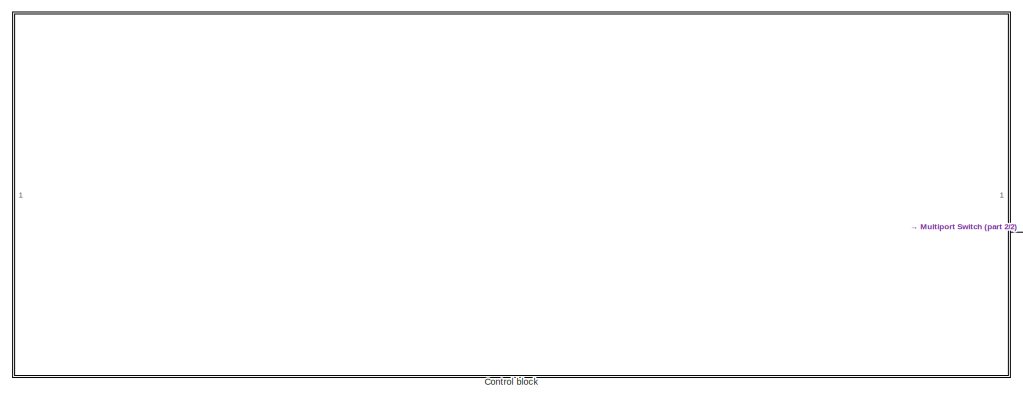
[diagram: root canvas - part 1/2, left side, full height]
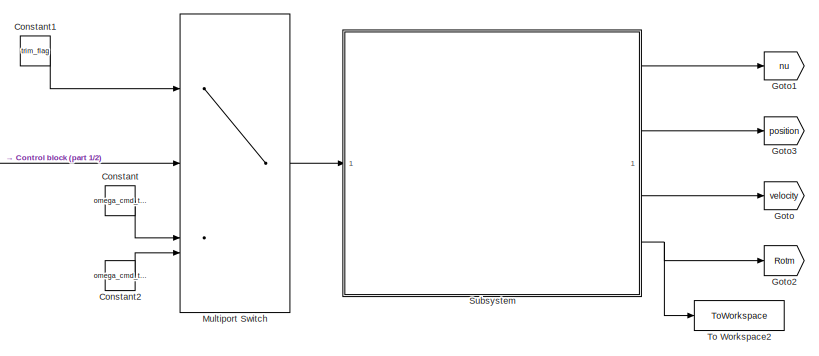
[diagram: root canvas - part 2/2, right side, full height]
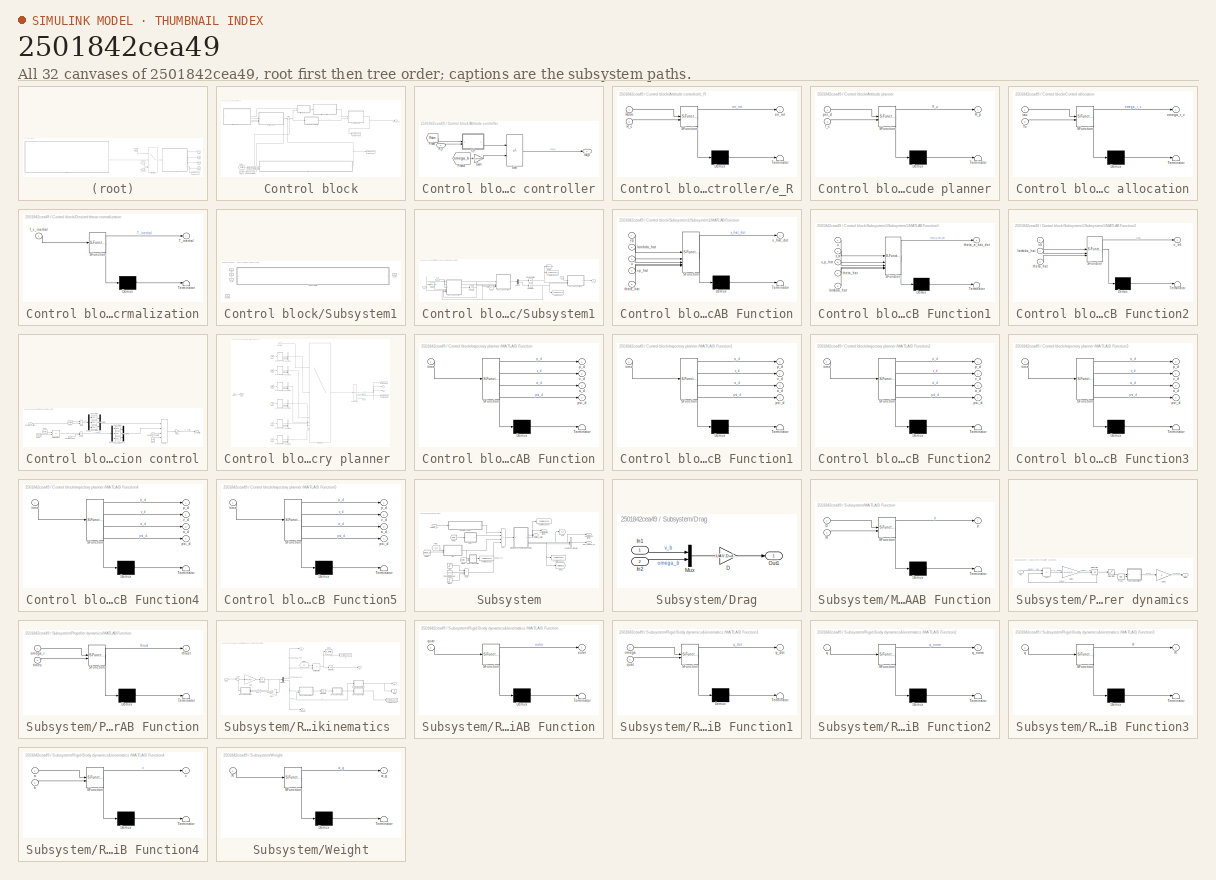
[diagram: thumbnail index - all 32 canvases of the model, root first then tree order]
MODEL slx_2501842cea49
KIND model
CONFIG AbsTol = auto
CONFIG EnableMultiTasking = off
CONFIG FixedStep = auto
CONFIG MaxStep = auto
CONFIG MinStep = auto
CONFIG RelTol = 1e-3
CONFIG SampleTimeConstraint = Unconstrained
CONFIG SolverName = VariableStepAuto
CONFIG StartTime = 0.0
CONFIG StopTime = simulation_time
BLOCK [Constant] Constant
  Value = omega_cmd_trim_1
BLOCK [Constant] Constant1
  Value = trim_flag
BLOCK [Constant] Constant2
  Value = omega_cmd_trim_2
BLOCK [SubSystem] Control block
BLOCK [SubSystem] Control block/Attitude controller
BLOCK [From] Control block/Attitude controller/From
  GotoTag = Rotm
  TagVisibility = global
BLOCK [From] Control block/Attitude controller/From3
  GotoTag = omega_b
  TagVisibility = global
BLOCK [Gain] Control block/Attitude controller/Gain
  Gain = k_omega
  Multiplication = Matrix(K*u)
BLOCK [Inport] Control block/Attitude controller/R_c
BLOCK [Sum] Control block/Attitude controller/Sum
  IconShape = rectangular
  Inputs = --
BLOCK [SubSystem] Control block/Attitude controller/e_R
  ErrorFcn = Stateflow.Translate.translate
  PermitHierarchicalResolution = ExplicitOnly
  SFBlockType = MATLAB Function
  TreatAsAtomicUnit = on
BLOCK [Demux] Control block/Attitude controller/e_R/ Demux 
  Outputs = 1
BLOCK [S-Function] Control block/Attitude controller/e_R/ SFunction 
  EnableBusSupport = on
  FunctionName = sf_sfun
  Parameters = k_R
  PortCounts = [2 2]
  SFcnIsStateOwnerBlock = off
  SFunctionDeploymentMode = off
  Tag = Stateflow S-Function 12
BLOCK [Terminator] Control block/Attitude controller/e_R/ Terminator 
BLOCK [Inport] Control block/Attitude controller/e_R/R_c
  Port = 2
BLOCK [Inport] Control block/Attitude controller/e_R/Rotm
BLOCK [Outport] Control block/Attitude controller/e_R/err_rot
BLOCK [Outport] Control block/Attitude controller/tau_b
BLOCK [SubSystem] Control block/Attitude planner
  ErrorFcn = Stateflow.Translate.translate
  PermitHierarchicalResolution = ExplicitOnly
  SFBlockType = MATLAB Function
  TreatAsAtomicUnit = on
BLOCK [Demux] Control block/Attitude planner/ Demux 
  Outputs = 1
BLOCK [S-Function] Control block/Attitude planner/ SFunction 
  EnableBusSupport = on
  FunctionName = sf_sfun
  PortCounts = [2 2]
  SFcnIsStateOwnerBlock = off
  SFunctionDeploymentMode = off
  Tag = Stateflow S-Function 11
BLOCK [Terminator] Control block/Attitude planner/ Terminator 
BLOCK [Outport] Control block/Attitude planner/R_p
BLOCK [Inport] Control block/Attitude planner/f_c
  Port = 2
BLOCK [Inport] Control block/Attitude planner/psi_d
BLOCK [SubSystem] Control block/Control allocation
  ErrorFcn = Stateflow.Translate.translate
  PermitHierarchicalResolution = ExplicitOnly
  SFBlockType = MATLAB Function
  TreatAsAtomicUnit = on
BLOCK [Demux] Control block/Control allocation/ Demux 
  Outputs = 1
BLOCK [S-Function] Control block/Control allocation/ SFunction 
  EnableBusSupport = on
  FunctionName = sf_sfun
  Parameters = F,UAV,k_f,lambda_r_0
  PortCounts = [2 2]
  SFcnIsStateOwnerBlock = off
  SFunctionDeploymentMode = off
  Tag = Stateflow S-Function 13
BLOCK [Terminator] Control block/Control allocation/ Terminator 
BLOCK [Inport] Control block/Control allocation/Tc
  Port = 2
BLOCK [Outport] Control block/Control allocation/omega_r_v
BLOCK [Inport] Control block/Control allocation/tau
BLOCK [SubSystem] Control block/Desired thrust normalization
  ErrorFcn = Stateflow.Translate.translate
  PermitHierarchicalResolution = ExplicitOnly
  SFBlockType = MATLAB Function
  TreatAsAtomicUnit = on
BLOCK [Demux] Control block/Desired thrust normalization/ Demux 
  Outputs = 1
BLOCK [S-Function] Control block/Desired thrust normalization/ SFunction 
  EnableBusSupport = on
  FunctionName = sf_sfun
  PortCounts = [1 2]
  SFcnIsStateOwnerBlock = off
  SFunctionDeploymentMode = off
  Tag = Stateflow S-Function 10
BLOCK [Terminator] Control block/Desired thrust normalization/ Terminator 
BLOCK [Outport] Control block/Desired thrust normalization/T_inertial
BLOCK [Inport] Control block/Desired thrust normalization/f_c_inertial
BLOCK [From] Control block/From2
  GotoTag = v_inertial
  TagVisibility = global
BLOCK [From] Control block/From3
  GotoTag = velocity
  TagVisibility = global
BLOCK [SignalSpecification] Control block/Signal Specification
  Dimensions = 3
BLOCK [SignalSpecification] Control block/Signal Specification1
  Dimensions = 3
BLOCK [SubSystem] Control block/Subsystem1
  AllowZeroVariantControls = on
  Variant = on
BLOCK [SubSystem] Control block/Subsystem1/Subsystem1
  VariantControl = flag_adaptive==1
BLOCK [Demux] Control block/Subsystem1/Subsystem1/Demux
  Outputs = 2
BLOCK [From] Control block/Subsystem1/Subsystem1/From
  GotoTag = lambda_hat
BLOCK [From] Control block/Subsystem1/Subsystem1/From4
  GotoTag = lambda_hat
BLOCK [Goto] Control block/Subsystem1/Subsystem1/Goto4
  GotoTag = lambda_hat
BLOCK [Integrator] Control block/Subsystem1/Subsystem1/Integrator
  InitialCondition = [0,0,0]'
BLOCK [Integrator] Control block/Subsystem1/Subsystem1/Integrator Limited
  InitialCondition = 1/UAV.m*[1 1 1]'
  LimitOutput = on
  LowerSaturationLimit = [0 0 0]'
  UpperSaturationLimit = 1/UAV.m*[1 1 1]'
BLOCK [Integrator] Control block/Subsystem1/Subsystem1/Integrator1
  InitialCondition = [0 0 0]'
BLOCK [SubSystem] Control block/Subsystem1/Subsystem1/MATLAB Function
  ErrorFcn = Stateflow.Translate.translate
  PermitHierarchicalResolution = ExplicitOnly
  SFBlockType = MATLAB Function
  TreatAsAtomicUnit = on
BLOCK [Demux] Control block/Subsystem1/Subsystem1/MATLAB Function/ Demux 
  Outputs = 1
BLOCK [S-Function] Control block/Subsystem1/Subsystem1/MATLAB Function/ SFunction 
  EnableBusSupport = on
  FunctionName = sf_sfun
  Parameters = Ap,Bp,L,e,g
  PortCounts = [5 2]
  SFcnIsStateOwnerBlock = off
  SFunctionDeploymentMode = off
  Tag = Stateflow S-Function 14
BLOCK [Terminator] Control block/Subsystem1/Subsystem1/MATLAB Function/ Terminator 
BLOCK [Inport] Control block/Subsystem1/Subsystem1/MATLAB Function/lambda_hat
  Port = 2
BLOCK [Inport] Control block/Subsystem1/Subsystem1/MATLAB Function/theta_hat
  Port = 5
BLOCK [Inport] Control block/Subsystem1/Subsystem1/MATLAB Function/u
  Port = 3
BLOCK [Outport] Control block/Subsystem1/Subsystem1/MATLAB Function/x_hat_dot
BLOCK [Inport] Control block/Subsystem1/Subsystem1/MATLAB Function/xp
BLOCK [Inport] Control block/Subsystem1/Subsystem1/MATLAB Function/xp_hat
  Port = 4
BLOCK [SubSystem] Control block/Subsystem1/Subsystem1/MATLAB Function1
  ErrorFcn = Stateflow.Translate.translate
  PermitHierarchicalResolution = ExplicitOnly
  SFBlockType = MATLAB Function
  TreatAsAtomicUnit = on
BLOCK [Demux] Control block/Subsystem1/Subsystem1/MATLAB Function1/ Demux 
  Outputs = 1
BLOCK [S-Function] Control block/Subsystem1/Subsystem1/MATLAB Function1/ SFunction 
  EnableBusSupport = on
  FunctionName = sf_sfun
  Parameters = Bp,Gamma_a
  PortCounts = [5 2]
  SFcnIsStateOwnerBlock = off
  SFunctionDeploymentMode = off
  Tag = Stateflow S-Function 15
BLOCK [Terminator] Control block/Subsystem1/Subsystem1/MATLAB Function1/ Terminator 
BLOCK [Inport] Control block/Subsystem1/Subsystem1/MATLAB Function1/lambda_hat
  Port = 5
BLOCK [Outport] Control block/Subsystem1/Subsystem1/MATLAB Function1/theta_a_hat_dot
BLOCK [Inport] Control block/Subsystem1/Subsystem1/MATLAB Function1/theta_hat
  Port = 4
BLOCK [Inport] Control block/Subsystem1/Subsystem1/MATLAB Function1/u
BLOCK [Inport] Control block/Subsystem1/Subsystem1/MATLAB Function1/x_p
  Port = 2
BLOCK [Inport] Control block/Subsystem1/Subsystem1/MATLAB Function1/x_p_hat
  Port = 3
BLOCK [SubSystem] Control block/Subsystem1/Subsystem1/MATLAB Function2
  ErrorFcn = Stateflow.Translate.translate
  PermitHierarchicalResolution = ExplicitOnly
  SFBlockType = MATLAB Function
  TreatAsAtomicUnit = on
BLOCK [Demux] Control block/Subsystem1/Subsystem1/MATLAB Function2/ Demux 
  Outputs = 1
BLOCK [S-Function] Control block/Subsystem1/Subsystem1/MATLAB Function2/ SFunction 
  EnableBusSupport = on
  FunctionName = sf_sfun
  PortCounts = [3 2]
  SFcnIsStateOwnerBlock = off
  SFunctionDeploymentMode = off
  Tag = Stateflow S-Function 16
BLOCK [Terminator] Control block/Subsystem1/Subsystem1/MATLAB Function2/ Terminator 
BLOCK [Inport] Control block/Subsystem1/Subsystem1/MATLAB Function2/lambda_hat
  Port = 2
BLOCK [Inport] Control block/Subsystem1/Subsystem1/MATLAB Function2/theta_hat
  Port = 3
BLOCK [Outport] Control block/Subsystem1/Subsystem1/MATLAB Function2/u_ad
BLOCK [Inport] Control block/Subsystem1/Subsystem1/MATLAB Function2/ub
BLOCK [ToWorkspace] Control block/Subsystem1/Subsystem1/To Workspace
  FixptAsFi = on
  MaxDataPoints = inf
  SampleTime = -1
  SaveFormat = Timeseries
  VariableName = theta_estimated
BLOCK [ToWorkspace] Control block/Subsystem1/Subsystem1/To Workspace1
  FixptAsFi = on
  MaxDataPoints = inf
  SampleTime = -1
  SaveFormat = Timeseries
  VariableName = lambda_estimated
BLOCK [Inport] Control block/Subsystem1/Subsystem1/u
  Port = 2
BLOCK [Outport] Control block/Subsystem1/Subsystem1/u_ad
BLOCK [Inport] Control block/Subsystem1/Subsystem1/ub
BLOCK [Inport] Control block/Subsystem1/Subsystem1/x_p
  Port = 3
BLOCK [Inport] Control block/Subsystem1/u
  Port = 2
BLOCK [Outport] Control block/Subsystem1/u_ad
BLOCK [Inport] Control block/Subsystem1/ub
BLOCK [Inport] Control block/Subsystem1/v_body
  Port = 4
BLOCK [Inport] Control block/Subsystem1/x_p
  Port = 3
BLOCK [Sum] Control block/Sum
  Inputs = |++
BLOCK [ToWorkspace] Control block/To Workspace
  FixptAsFi = on
  MaxDataPoints = inf
  SampleTime = -1
  SaveFormat = Timeseries
  VariableName = u_adapt
BLOCK [ToWorkspace] Control block/To Workspace1
  FixptAsFi = on
  MaxDataPoints = inf
  SampleTime = -1
  SaveFormat = Timeseries
  VariableName = omega_cmd
BLOCK [Outport] Control block/omega_r_v
BLOCK [SubSystem] Control block/position control
BLOCK [Demux] Control block/position control/Demux
  Outputs = 3
BLOCK [Demux] Control block/position control/Demux1
  Outputs = 3
BLOCK [Inport] Control block/position control/Desired acceleration
  Port = 3
BLOCK [Inport] Control block/position control/Desired position
BLOCK [Inport] Control block/position control/Desired velocity
  Port = 2
BLOCK [From] Control block/position control/From1
  GotoTag = velocity
  TagVisibility = global
BLOCK [From] Control block/position control/From4
  GotoTag = position
  TagVisibility = global
BLOCK [From] Control block/position control/From5
  GotoTag = Rotm
  TagVisibility = global
BLOCK [Gain] Control block/position control/Gain1
  Gain = UAV.m
BLOCK [Constant] Control block/position control/Gravity
  Value = [0 0 1]'*g
BLOCK [Product] Control block/position control/Matrix Multiply1
  Multiplication = Matrix(*)
BLOCK [Mux] Control block/position control/Mux
  DisplayOption = bar
  Inputs = 3
BLOCK [Mux] Control block/position control/Mux1
  DisplayOption = bar
  Inputs = 3
BLOCK [Reference] Control block/position control/PID Controller  REF=slpidlib/PID Controller
  SourceBlock = slpidlib/PID Controller
  SourceType = PID 1dof
BLOCK [Reference] Control block/position control/PID Controller1  REF=slpidlib/PID Controller
  SourceBlock = slpidlib/PID Controller
  SourceType = PID 1dof
BLOCK [Reference] Control block/position control/PID Controller2  REF=slpidlib/PID Controller
  SourceBlock = slpidlib/PID Controller
  SourceType = PID 1dof
BLOCK [Reference] Control block/position control/PID Controller3  REF=slpidlib/PID Controller
  SourceBlock = slpidlib/PID Controller
  SourceType = PID 1dof
BLOCK [Reference] Control block/position control/PID Controller4  REF=slpidlib/PID Controller
  SourceBlock = slpidlib/PID Controller
  SourceType = PID 1dof
BLOCK [Reference] Control block/position control/PID Controller5  REF=slpidlib/PID Controller
  SourceBlock = slpidlib/PID Controller
  SourceType = PID 1dof
BLOCK [Sum] Control block/position control/Sum
  IconShape = rectangular
  Inputs = |-+
BLOCK [Sum] Control block/position control/Sum1
  IconShape = rectangular
  Inputs = |-+
BLOCK [Sum] Control block/position control/Sum2
  IconShape = rectangular
  Inputs = ++++
BLOCK [Outport] Control block/position control/f_c_inertial
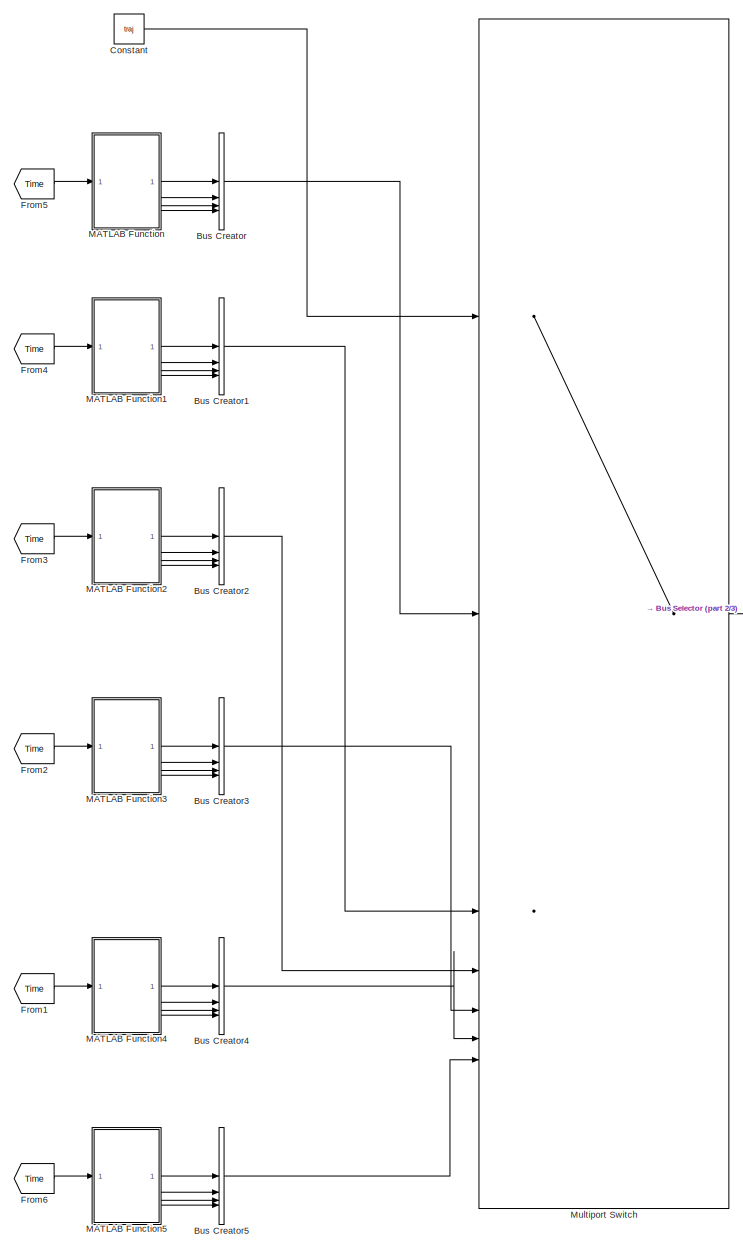
[diagram: Control block/trajectory planner  - part 1/3, center side, full height]
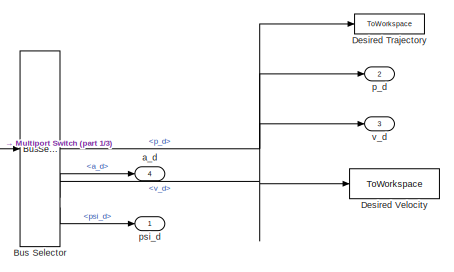
[diagram: Control block/trajectory planner  - part 2/3, middle right region]
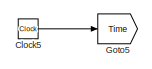
[diagram: Control block/trajectory planner  - part 3/3, middle left region]
BLOCK [SubSystem] Control block/trajectory planner 
BLOCK [BusCreator] Control block/trajectory planner /Bus Creator
  DisplayOption = bar
  InheritFromInputs = on
  Inputs = 4
BLOCK [BusCreator] Control block/trajectory planner /Bus Creator1
  DisplayOption = bar
  InheritFromInputs = on
  Inputs = 4
BLOCK [BusCreator] Control block/trajectory planner /Bus Creator2
  DisplayOption = bar
  InheritFromInputs = on
  Inputs = 4
BLOCK [BusCreator] Control block/trajectory planner /Bus Creator3
  DisplayOption = bar
  InheritFromInputs = on
  Inputs = 4
BLOCK [BusCreator] Control block/trajectory planner /Bus Creator4
  DisplayOption = bar
  InheritFromInputs = on
  Inputs = 4
BLOCK [BusCreator] Control block/trajectory planner /Bus Creator5
  DisplayOption = bar
  InheritFromInputs = on
  Inputs = 4
BLOCK [BusSelector] Control block/trajectory planner /Bus Selector
  OutputSignals = p_d,v_d,a_d,psi_d
BLOCK [Clock] Control block/trajectory planner /Clock5
BLOCK [Constant] Control block/trajectory planner /Constant
  Value = traj
BLOCK [ToWorkspace] Control block/trajectory planner /Desired Trajectory
  FixptAsFi = on
  MaxDataPoints = inf
  SampleTime = -1
  SaveFormat = Timeseries
  VariableName = trajectory
BLOCK [ToWorkspace] Control block/trajectory planner /Desired Velocity
  FixptAsFi = on
  MaxDataPoints = inf
  SampleTime = -1
  SaveFormat = Timeseries
  VariableName = velocity_trajectory
BLOCK [From] Control block/trajectory planner /From1
  GotoTag = Time
  TagVisibility = global
BLOCK [From] Control block/trajectory planner /From2
  GotoTag = Time
  TagVisibility = global
BLOCK [From] Control block/trajectory planner /From3
  GotoTag = Time
  TagVisibility = global
BLOCK [From] Control block/trajectory planner /From4
  GotoTag = Time
  TagVisibility = global
BLOCK [From] Control block/trajectory planner /From5
  GotoTag = Time
  TagVisibility = global
BLOCK [From] Control block/trajectory planner /From6
  GotoTag = Time
  TagVisibility = global
BLOCK [Goto] Control block/trajectory planner /Goto5
  GotoTag = Time
  TagVisibility = global
BLOCK [SubSystem] Control block/trajectory planner /MATLAB Function
  ErrorFcn = Stateflow.Translate.translate
  PermitHierarchicalResolution = ExplicitOnly
  SFBlockType = MATLAB Function
  TreatAsAtomicUnit = on
BLOCK [Demux] Control block/trajectory planner /MATLAB Function/ Demux 
  Outputs = 1
BLOCK [S-Function] Control block/trajectory planner /MATLAB Function/ SFunction 
  EnableBusSupport = on
  FunctionName = sf_sfun
  Parameters = omega_t,radius,w_t
  PortCounts = [1 5]
  SFcnIsStateOwnerBlock = off
  SFunctionDeploymentMode = off
  Tag = Stateflow S-Function 8
BLOCK [Terminator] Control block/trajectory planner /MATLAB Function/ Terminator 
BLOCK [Outport] Control block/trajectory planner /MATLAB Function/a_d
  Port = 3
BLOCK [Outport] Control block/trajectory planner /MATLAB Function/p_d
BLOCK [Outport] Control block/trajectory planner /MATLAB Function/psi_d
  Port = 4
BLOCK [Inport] Control block/trajectory planner /MATLAB Function/time
BLOCK [Outport] Control block/trajectory planner /MATLAB Function/v_d
  Port = 2
BLOCK [SubSystem] Control block/trajectory planner /MATLAB Function1
  ErrorFcn = Stateflow.Translate.translate
  PermitHierarchicalResolution = ExplicitOnly
  SFBlockType = MATLAB Function
  TreatAsAtomicUnit = on
BLOCK [Demux] Control block/trajectory planner /MATLAB Function1/ Demux 
  Outputs = 1
BLOCK [S-Function] Control block/trajectory planner /MATLAB Function1/ SFunction 
  EnableBusSupport = on
  FunctionName = sf_sfun
  Parameters = omega_t,radius,w_t
  PortCounts = [1 5]
  SFcnIsStateOwnerBlock = off
  SFunctionDeploymentMode = off
  Tag = Stateflow S-Function 18
BLOCK [Terminator] Control block/trajectory planner /MATLAB Function1/ Terminator 
BLOCK [Outport] Control block/trajectory planner /MATLAB Function1/a_d
  Port = 3
BLOCK [Outport] Control block/trajectory planner /MATLAB Function1/p_d
BLOCK [Outport] Control block/trajectory planner /MATLAB Function1/psi_d
  Port = 4
BLOCK [Inport] Control block/trajectory planner /MATLAB Function1/time
BLOCK [Outport] Control block/trajectory planner /MATLAB Function1/v_d
  Port = 2
BLOCK [SubSystem] Control block/trajectory planner /MATLAB Function2
  ErrorFcn = Stateflow.Translate.translate
  PermitHierarchicalResolution = ExplicitOnly
  SFBlockType = MATLAB Function
  TreatAsAtomicUnit = on
BLOCK [Demux] Control block/trajectory planner /MATLAB Function2/ Demux 
  Outputs = 1
BLOCK [S-Function] Control block/trajectory planner /MATLAB Function2/ SFunction 
  EnableBusSupport = on
  FunctionName = sf_sfun
  Parameters = omega_t,radius,w_t
  PortCounts = [1 5]
  SFcnIsStateOwnerBlock = off
  SFunctionDeploymentMode = off
  Tag = Stateflow S-Function 19
BLOCK [Terminator] Control block/trajectory planner /MATLAB Function2/ Terminator 
BLOCK [Outport] Control block/trajectory planner /MATLAB Function2/a_d
  Port = 3
BLOCK [Outport] Control block/trajectory planner /MATLAB Function2/p_d
BLOCK [Outport] Control block/trajectory planner /MATLAB Function2/psi_d
  Port = 4
BLOCK [Inport] Control block/trajectory planner /MATLAB Function2/time
BLOCK [Outport] Control block/trajectory planner /MATLAB Function2/v_d
  Port = 2
BLOCK [SubSystem] Control block/trajectory planner /MATLAB Function3
  ErrorFcn = Stateflow.Translate.translate
  PermitHierarchicalResolution = ExplicitOnly
  SFBlockType = MATLAB Function
  TreatAsAtomicUnit = on
BLOCK [Demux] Control block/trajectory planner /MATLAB Function3/ Demux 
  Outputs = 1
BLOCK [S-Function] Control block/trajectory planner /MATLAB Function3/ SFunction 
  EnableBusSupport = on
  FunctionName = sf_sfun
  Parameters = omega_t,radius,w_t
  PortCounts = [1 5]
  SFcnIsStateOwnerBlock = off
  SFunctionDeploymentMode = off
  Tag = Stateflow S-Function 20
BLOCK [Terminator] Control block/trajectory planner /MATLAB Function3/ Terminator 
BLOCK [Outport] Control block/trajectory planner /MATLAB Function3/a_d
  Port = 3
BLOCK [Outport] Control block/trajectory planner /MATLAB Function3/p_d
BLOCK [Outport] Control block/trajectory planner /MATLAB Function3/psi_d
  Port = 4
BLOCK [Inport] Control block/trajectory planner /MATLAB Function3/time
BLOCK [Outport] Control block/trajectory planner /MATLAB Function3/v_d
  Port = 2
BLOCK [SubSystem] Control block/trajectory planner /MATLAB Function4
  ErrorFcn = Stateflow.Translate.translate
  PermitHierarchicalResolution = ExplicitOnly
  SFBlockType = MATLAB Function
  TreatAsAtomicUnit = on
BLOCK [Demux] Control block/trajectory planner /MATLAB Function4/ Demux 
  Outputs = 1
BLOCK [S-Function] Control block/trajectory planner /MATLAB Function4/ SFunction 
  EnableBusSupport = on
  FunctionName = sf_sfun
  Parameters = omega_t,radius,w_t
  PortCounts = [1 5]
  SFcnIsStateOwnerBlock = off
  SFunctionDeploymentMode = off
  Tag = Stateflow S-Function 21
BLOCK [Terminator] Control block/trajectory planner /MATLAB Function4/ Terminator 
BLOCK [Outport] Control block/trajectory planner /MATLAB Function4/a_d
  Port = 3
BLOCK [Outport] Control block/trajectory planner /MATLAB Function4/p_d
BLOCK [Outport] Control block/trajectory planner /MATLAB Function4/psi_d
  Port = 4
BLOCK [Inport] Control block/trajectory planner /MATLAB Function4/time
BLOCK [Outport] Control block/trajectory planner /MATLAB Function4/v_d
  Port = 2
BLOCK [SubSystem] Control block/trajectory planner /MATLAB Function5
  ErrorFcn = Stateflow.Translate.translate
  PermitHierarchicalResolution = ExplicitOnly
  SFBlockType = MATLAB Function
  TreatAsAtomicUnit = on
BLOCK [Demux] Control block/trajectory planner /MATLAB Function5/ Demux 
  Outputs = 1
BLOCK [S-Function] Control block/trajectory planner /MATLAB Function5/ SFunction 
  EnableBusSupport = on
  FunctionName = sf_sfun
  PortCounts = [1 5]
  SFcnIsStateOwnerBlock = off
  SFunctionDeploymentMode = off
  Tag = Stateflow S-Function 22
BLOCK [Terminator] Control block/trajectory planner /MATLAB Function5/ Terminator 
BLOCK [Outport] Control block/trajectory planner /MATLAB Function5/a_d
  Port = 3
BLOCK [Outport] Control block/trajectory planner /MATLAB Function5/p_d
BLOCK [Outport] Control block/trajectory planner /MATLAB Function5/psi_d
  Port = 4
BLOCK [Inport] Control block/trajectory planner /MATLAB Function5/time
BLOCK [Outport] Control block/trajectory planner /MATLAB Function5/v_d
  Port = 2
BLOCK [MultiPortSwitch] Control block/trajectory planner /Multiport Switch
  DataPortOrder = Zero-based contiguous
  InputSameDT = off
  Inputs = 6
  SaturateOnIntegerOverflow = off
  zeroidx = on
BLOCK [Outport] Control block/trajectory planner /a_d
  Port = 4
BLOCK [Outport] Control block/trajectory planner /p_d
  Port = 2
BLOCK [Outport] Control block/trajectory planner /psi_d
BLOCK [Outport] Control block/trajectory planner /v_d
  Port = 3
BLOCK [Goto] Goto
  GotoTag = velocity
  TagVisibility = global
BLOCK [Goto] Goto1
  GotoTag = nu
  TagVisibility = global
BLOCK [Goto] Goto2
  GotoTag = Rotm
  TagVisibility = global
BLOCK [Goto] Goto3
  GotoTag = position
  TagVisibility = global
BLOCK [MultiPortSwitch] Multiport Switch
  DataPortOrder = Zero-based contiguous
  InputSameDT = off
  SaturateOnIntegerOverflow = off
  zeroidx = on
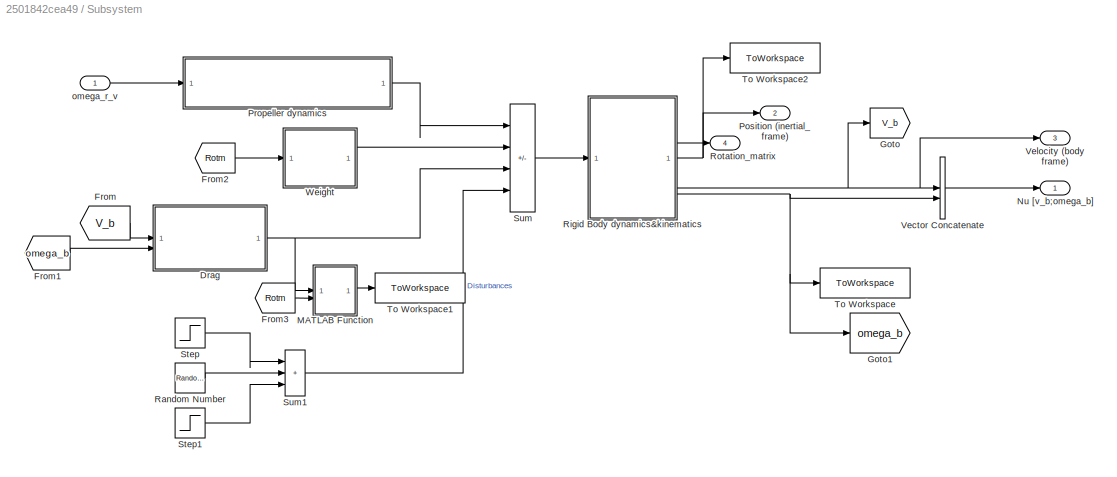
BLOCK [SubSystem] Subsystem
BLOCK [SubSystem] Subsystem/Drag
BLOCK [Gain] Subsystem/Drag/D
  Gain = UAV.D+diag(pert)
  Multiplication = Matrix(K*u)
BLOCK [Inport] Subsystem/Drag/In1
BLOCK [Inport] Subsystem/Drag/In2
  Port = 2
BLOCK [Mux] Subsystem/Drag/Mux
  DisplayOption = bar
  Inputs = 2
BLOCK [Outport] Subsystem/Drag/Out1
BLOCK [From] Subsystem/From
  GotoTag = V_b
BLOCK [From] Subsystem/From1
  GotoTag = omega_b
  TagVisibility = global
BLOCK [From] Subsystem/From2
  GotoTag = Rotm
  TagVisibility = global
BLOCK [From] Subsystem/From3
  GotoTag = Rotm
  TagVisibility = global
BLOCK [Goto] Subsystem/Goto
  GotoTag = V_b
BLOCK [Goto] Subsystem/Goto1
  GotoTag = omega_b
  TagVisibility = global
BLOCK [SubSystem] Subsystem/MATLAB Function
  ErrorFcn = Stateflow.Translate.translate
  PermitHierarchicalResolution = ExplicitOnly
  SFBlockType = MATLAB Function
  TreatAsAtomicUnit = on
BLOCK [Demux] Subsystem/MATLAB Function/ Demux 
  Outputs = 1
BLOCK [S-Function] Subsystem/MATLAB Function/ SFunction 
  EnableBusSupport = on
  FunctionName = sf_sfun
  PortCounts = [2 2]
  SFcnIsStateOwnerBlock = off
  SFunctionDeploymentMode = off
  Tag = Stateflow S-Function 9
BLOCK [Terminator] Subsystem/MATLAB Function/ Terminator 
BLOCK [Inport] Subsystem/MATLAB Function/D
BLOCK [Inport] Subsystem/MATLAB Function/R
  Port = 2
BLOCK [Outport] Subsystem/MATLAB Function/y
BLOCK [Outport] Subsystem/Nu [v_b;omega_b]
BLOCK [Outport] Subsystem/Position (inertial_frame)
  Port = 2
BLOCK [SubSystem] Subsystem/Propeller dynamics
BLOCK [From] Subsystem/Propeller dynamics/From
  GotoTag = Time
  TagVisibility = global
BLOCK [Gain] Subsystem/Propeller dynamics/Gain1
  Gain = UAV.k_m_vec
BLOCK [Gain] Subsystem/Propeller dynamics/Gain2
  Gain = F
  Multiplication = Matrix(K*u)
BLOCK [Inport] Subsystem/Propeller dynamics/In1
BLOCK [Integrator] Subsystem/Propeller dynamics/Integrator
  InitialCondition = omega_r_0
BLOCK [SubSystem] Subsystem/Propeller dynamics/MATLAB Function
  ErrorFcn = Stateflow.Translate.translate
  PermitHierarchicalResolution = ExplicitOnly
  SFBlockType = MATLAB Function
  TreatAsAtomicUnit = on
BLOCK [Demux] Subsystem/Propeller dynamics/MATLAB Function/ Demux 
  Outputs = 1
BLOCK [S-Function] Subsystem/Propeller dynamics/MATLAB Function/ SFunction 
  EnableBusSupport = on
  FunctionName = sf_sfun
  Parameters = degrad_flag,k_f,lambda_r_0
  PortCounts = [2 2]
  SFcnIsStateOwnerBlock = off
  SFunctionDeploymentMode = off
  Tag = Stateflow S-Function 7
BLOCK [Terminator] Subsystem/Propeller dynamics/MATLAB Function/ Terminator 
BLOCK [Inport] Subsystem/Propeller dynamics/MATLAB Function/omega_r
BLOCK [Outport] Subsystem/Propeller dynamics/MATLAB Function/thrust
  VectorParamsAs1DForOutWhenUnconnected = off
BLOCK [Inport] Subsystem/Propeller dynamics/MATLAB Function/times
  Port = 2
BLOCK [Outport] Subsystem/Propeller dynamics/Out1
BLOCK [Saturate] Subsystem/Propeller dynamics/Saturation
  LowerLimit = UAV.Omega_min
  UpperLimit = UAV.Omega_max
BLOCK [Sum] Subsystem/Propeller dynamics/Sum1
  IconShape = rectangular
  Inputs = |+-
BLOCK [RandomNumber] Subsystem/Random Number
  Mean = [0 0 0 0 0 0]'
  SampleTime = 0.1
  Variance = f_ex/20*[1 1 1 0 0 0]'
BLOCK [SubSystem] Subsystem/Rigid Body dynamics&kinematics 
BLOCK [Demux] Subsystem/Rigid Body dynamics&kinematics /Demux
  Outputs = 2
BLOCK [From] Subsystem/Rigid Body dynamics&kinematics /From1
  GotoTag = R
BLOCK [Gain] Subsystem/Rigid Body dynamics&kinematics /Gain
  Gain = inv_M_tot
  Multiplication = Matrix(K*u)
BLOCK [Gain] Subsystem/Rigid Body dynamics&kinematics /Gain1
  Gain = M_tot
  Multiplication = Matrix(K*u)
  NameLocation = top
BLOCK [Goto] Subsystem/Rigid Body dynamics&kinematics /Goto
  GotoTag = R
BLOCK [Goto] Subsystem/Rigid Body dynamics&kinematics /Goto2
  GotoTag = v_inertial
  TagVisibility = global
BLOCK [Integrator] Subsystem/Rigid Body dynamics&kinematics /Integrator
  InitialCondition = p_0
BLOCK [Integrator] Subsystem/Rigid Body dynamics&kinematics /Integrator1
  InitialCondition = [vb_0; omegab_0]
BLOCK [Integrator] Subsystem/Rigid Body dynamics&kinematics /Integrator2
  InitialCondition = q_0
BLOCK [SubSystem] Subsystem/Rigid Body dynamics&kinematics /MATLAB Function
  ErrorFcn = Stateflow.Translate.translate
  PermitHierarchicalResolution = ExplicitOnly
  SFBlockType = MATLAB Function
  TreatAsAtomicUnit = on
BLOCK [Demux] Subsystem/Rigid Body dynamics&kinematics /MATLAB Function/ Demux 
  Outputs = 1
BLOCK [S-Function] Subsystem/Rigid Body dynamics&kinematics /MATLAB Function/ SFunction 
  EnableBusSupport = on
  FunctionName = sf_sfun
  PortCounts = [1 2]
  SFcnIsStateOwnerBlock = off
  SFunctionDeploymentMode = off
  Tag = Stateflow S-Function 2
BLOCK [Terminator] Subsystem/Rigid Body dynamics&kinematics /MATLAB Function/ Terminator 
BLOCK [Outport] Subsystem/Rigid Body dynamics&kinematics /MATLAB Function/euler
BLOCK [Inport] Subsystem/Rigid Body dynamics&kinematics /MATLAB Function/quat
BLOCK [SubSystem] Subsystem/Rigid Body dynamics&kinematics /MATLAB Function1
  ErrorFcn = Stateflow.Translate.translate
  PermitHierarchicalResolution = ExplicitOnly
  SFBlockType = MATLAB Function
  TreatAsAtomicUnit = on
BLOCK [Demux] Subsystem/Rigid Body dynamics&kinematics /MATLAB Function1/ Demux 
  Outputs = 1
BLOCK [S-Function] Subsystem/Rigid Body dynamics&kinematics /MATLAB Function1/ SFunction 
  EnableBusSupport = on
  FunctionName = sf_sfun
  PortCounts = [2 2]
  SFcnIsStateOwnerBlock = off
  SFunctionDeploymentMode = off
  Tag = Stateflow S-Function 1
BLOCK [Terminator] Subsystem/Rigid Body dynamics&kinematics /MATLAB Function1/ Terminator 
BLOCK [Inport] Subsystem/Rigid Body dynamics&kinematics /MATLAB Function1/omega
BLOCK [Outport] Subsystem/Rigid Body dynamics&kinematics /MATLAB Function1/q_dot
BLOCK [Inport] Subsystem/Rigid Body dynamics&kinematics /MATLAB Function1/quat
  Port = 2
BLOCK [SubSystem] Subsystem/Rigid Body dynamics&kinematics /MATLAB Function2
  ErrorFcn = Stateflow.Translate.translate
  PermitHierarchicalResolution = ExplicitOnly
  SFBlockType = MATLAB Function
  TreatAsAtomicUnit = on
BLOCK [Demux] Subsystem/Rigid Body dynamics&kinematics /MATLAB Function2/ Demux 
  Outputs = 1
BLOCK [S-Function] Subsystem/Rigid Body dynamics&kinematics /MATLAB Function2/ SFunction 
  EnableBusSupport = on
  FunctionName = sf_sfun
  PortCounts = [1 2]
  SFcnIsStateOwnerBlock = off
  SFunctionDeploymentMode = off
  Tag = Stateflow S-Function 3
BLOCK [Terminator] Subsystem/Rigid Body dynamics&kinematics /MATLAB Function2/ Terminator 
BLOCK [Inport] Subsystem/Rigid Body dynamics&kinematics /MATLAB Function2/q
BLOCK [Outport] Subsystem/Rigid Body dynamics&kinematics /MATLAB Function2/q_norm
BLOCK [SubSystem] Subsystem/Rigid Body dynamics&kinematics /MATLAB Function3
  ErrorFcn = Stateflow.Translate.translate
  PermitHierarchicalResolution = ExplicitOnly
  SFBlockType = MATLAB Function
  TreatAsAtomicUnit = on
BLOCK [Demux] Subsystem/Rigid Body dynamics&kinematics /MATLAB Function3/ Demux 
  Outputs = 1
BLOCK [S-Function] Subsystem/Rigid Body dynamics&kinematics /MATLAB Function3/ SFunction 
  EnableBusSupport = on
  FunctionName = sf_sfun
  PortCounts = [1 2]
  SFcnIsStateOwnerBlock = off
  SFunctionDeploymentMode = off
  Tag = Stateflow S-Function 4
BLOCK [Terminator] Subsystem/Rigid Body dynamics&kinematics /MATLAB Function3/ Terminator 
BLOCK [Outport] Subsystem/Rigid Body dynamics&kinematics /MATLAB Function3/R
BLOCK [Inport] Subsystem/Rigid Body dynamics&kinematics /MATLAB Function3/q
BLOCK [SubSystem] Subsystem/Rigid Body dynamics&kinematics /MATLAB Function4
  ErrorFcn = Stateflow.Translate.translate
  NameLocation = top
  PermitHierarchicalResolution = ExplicitOnly
  SFBlockType = MATLAB Function
  TreatAsAtomicUnit = on
BLOCK [Demux] Subsystem/Rigid Body dynamics&kinematics /MATLAB Function4/ Demux 
  Outputs = 1
BLOCK [S-Function] Subsystem/Rigid Body dynamics&kinematics /MATLAB Function4/ SFunction 
  EnableBusSupport = on
  FunctionName = sf_sfun
  PortCounts = [2 2]
  SFcnIsStateOwnerBlock = off
  SFunctionDeploymentMode = off
  Tag = Stateflow S-Function 5
BLOCK [Terminator] Subsystem/Rigid Body dynamics&kinematics /MATLAB Function4/ Terminator 
BLOCK [Inport] Subsystem/Rigid Body dynamics&kinematics /MATLAB Function4/a
BLOCK [Inport] Subsystem/Rigid Body dynamics&kinematics /MATLAB Function4/b
  Port = 2
BLOCK [Outport] Subsystem/Rigid Body dynamics&kinematics /MATLAB Function4/c
BLOCK [Product] Subsystem/Rigid Body dynamics&kinematics /Matrix Multiply
  Multiplication = Matrix(*)
BLOCK [Outport] Subsystem/Rigid Body dynamics&kinematics /R
  Port = 2
BLOCK [Sum] Subsystem/Rigid Body dynamics&kinematics /Sum
  Inputs = |+-
BLOCK [ToWorkspace] Subsystem/Rigid Body dynamics&kinematics /To Workspace
  FixptAsFi = on
  MaxDataPoints = inf
  SampleTime = -1
  SaveFormat = Timeseries
  VariableName = euler
BLOCK [ToWorkspace] Subsystem/Rigid Body dynamics&kinematics /a
  FixptAsFi = on
  MaxDataPoints = inf
  SampleTime = -1
  SaveFormat = Timeseries
  VariableName = V_body
BLOCK [Outport] Subsystem/Rigid Body dynamics&kinematics /omegab
  Port = 4
BLOCK [Outport] Subsystem/Rigid Body dynamics&kinematics /p
BLOCK [Outport] Subsystem/Rigid Body dynamics&kinematics /vb
  Port = 3
BLOCK [Inport] Subsystem/Rigid Body dynamics&kinematics /w_b
BLOCK [Outport] Subsystem/Rotation_matrix
  Port = 4
BLOCK [Step] Subsystem/Step
  After = f_ex*[1 1 1 0 0 0]';
  Before = 0*[1 1 1 0 0 0]';
  SampleTime = 0
  Time = t_pert
BLOCK [Step] Subsystem/Step1
  After = -f_ex*[1 1 1 0 0 0]';
  Before = 0*[1 1 1 0 0 0]';
  SampleTime = 0
  Time = t_pert+5
BLOCK [Sum] Subsystem/Sum
  IconShape = rectangular
  Inputs = |+--+
BLOCK [Sum] Subsystem/Sum1
  IconShape = rectangular
  Inputs = |+++
BLOCK [ToWorkspace] Subsystem/To Workspace
  FixptAsFi = on
  MaxDataPoints = inf
  SampleTime = -1
  SaveFormat = Timeseries
  VariableName = omega_body
BLOCK [ToWorkspace] Subsystem/To Workspace1
  FixptAsFi = on
  MaxDataPoints = inf
  SampleTime = -1
  SaveFormat = Timeseries
  VariableName = drag
BLOCK [ToWorkspace] Subsystem/To Workspace2
  FixptAsFi = on
  MaxDataPoints = inf
  SampleTime = -1
  SaveFormat = Timeseries
  VariableName = body_position
BLOCK [Concatenate] Subsystem/Vector Concatenate
BLOCK [Outport] Subsystem/Velocity (body frame)
  Port = 3
BLOCK [SubSystem] Subsystem/Weight
  ErrorFcn = Stateflow.Translate.translate
  LibrarySourceBlock = simulink/User-Defined\nFunctions/MATLAB Function
  PermitHierarchicalResolution = ExplicitOnly
  SFBlockType = MATLAB Function
  TreatAsAtomicUnit = on
BLOCK [Demux] Subsystem/Weight/ Demux 
  Outputs = 1
BLOCK [S-Function] Subsystem/Weight/ SFunction 
  EnableBusSupport = on
  FunctionName = sf_sfun
  Parameters = M_tot,e,g
  PortCounts = [1 2]
  SFcnIsStateOwnerBlock = off
  SFunctionDeploymentMode = off
  Tag = Stateflow S-Function 6
BLOCK [Terminator] Subsystem/Weight/ Terminator 
BLOCK [Inport] Subsystem/Weight/R
BLOCK [Outport] Subsystem/Weight/w_g
BLOCK [Inport] Subsystem/omega_r_v
BLOCK [ToWorkspace] To Workspace2
  FixptAsFi = on
  MaxDataPoints = inf
  SampleTime = -1
  SaveFormat = Timeseries
  VariableName = rot_m
ANNOTATION Subsystem/Rigid Body dynamics&kinematics : ATTITUDE KINEMATICS
ANNOTATION Subsystem/Rigid Body dynamics&kinematics : POSITION KINEMATICS
LINE Constant1:1 -> Multiport Switch:1
LINE Constant2:1 -> Multiport Switch:4
LINE Constant:1 -> Multiport Switch:3
LINE Control block/Attitude controller/From3:1 -> Control block/Attitude controller/Gain:1
LINE Control block/Attitude controller/From:1 -> Control block/Attitude controller/e_R:1
LINE Control block/Attitude controller/Gain:1 -> Control block/Attitude controller/Sum:2
LINE Control block/Attitude controller/R_c:1 -> Control block/Attitude controller/e_R:2
LINE Control block/Attitude controller/Sum:1 -> Control block/Attitude controller/tau_b:1
LINE Control block/Attitude controller/e_R:1 -> Control block/Attitude controller/Sum:1
LINE Control block/Attitude controller:1 -> Control block/Control allocation:1
LINE Control block/Attitude planner:1 -> Control block/Attitude controller:1
NET Control block/Control allocation:1 -> Control block/To Workspace1:1, Control block/omega_r_v:1
LINE Control block/Desired thrust normalization:1 -> Control block/Control allocation:2
LINE Control block/From2:1 -> Control block/Signal Specification:1
LINE Control block/From3:1 -> Control block/Signal Specification1:1
LINE Control block/Signal Specification1:1 -> Control block/Subsystem1:4
LINE Control block/Signal Specification:1 -> Control block/Subsystem1:3
LINE Control block/Subsystem1/Subsystem1/Demux:1 -> Control block/Subsystem1/Subsystem1/Integrator Limited:1
LINE Control block/Subsystem1/Subsystem1/Demux:2 -> Control block/Subsystem1/Subsystem1/Integrator1:1
LINE Control block/Subsystem1/Subsystem1/From4:1 -> Control block/Subsystem1/Subsystem1/MATLAB Function:2
LINE Control block/Subsystem1/Subsystem1/From:1 -> Control block/Subsystem1/Subsystem1/MATLAB Function1:5
NET Control block/Subsystem1/Subsystem1/Integrator Limited:1 -> Control block/Subsystem1/Subsystem1/Goto4:1, Control block/Subsystem1/Subsystem1/MATLAB Function2:2, Control block/Subsystem1/Subsystem1/To Workspace1:1
NET Control block/Subsystem1/Subsystem1/Integrator1:1 -> Control block/Subsystem1/Subsystem1/MATLAB Function1:4, Control block/Subsystem1/Subsystem1/MATLAB Function2:3, Control block/Subsystem1/Subsystem1/MATLAB Function:5, Control block/Subsystem1/Subsystem1/To Workspace:1
NET Control block/Subsystem1/Subsystem1/Integrator:1 -> Control block/Subsystem1/Subsystem1/MATLAB Function1:3, Control block/Subsystem1/Subsystem1/MATLAB Function:4
LINE Control block/Subsystem1/Subsystem1/MATLAB Function1:1 -> Control block/Subsystem1/Subsystem1/Demux:1
LINE Control block/Subsystem1/Subsystem1/MATLAB Function2:1 -> Control block/Subsystem1/Subsystem1/u_ad:1
LINE Control block/Subsystem1/Subsystem1/MATLAB Function:1 -> Control block/Subsystem1/Subsystem1/Integrator:1
NET Control block/Subsystem1/Subsystem1/u:1 -> Control block/Subsystem1/Subsystem1/MATLAB Function1:1, Control block/Subsystem1/Subsystem1/MATLAB Function:3
LINE Control block/Subsystem1/Subsystem1/ub:1 -> Control block/Subsystem1/Subsystem1/MATLAB Function2:1
NET Control block/Subsystem1/Subsystem1/x_p:1 -> Control block/Subsystem1/Subsystem1/MATLAB Function1:2, Control block/Subsystem1/Subsystem1/MATLAB Function:1
NET Control block/Subsystem1:1 -> Control block/Sum:2, Control block/To Workspace:1
NET Control block/Sum:1 -> Control block/Attitude planner:2, Control block/Desired thrust normalization:1, Control block/Subsystem1:2
LINE Control block/position control/Demux1:1 -> Control block/position control/PID Controller3:1
LINE Control block/position control/Demux1:2 -> Control block/position control/PID Controller5:1
LINE Control block/position control/Demux1:3 -> Control block/position control/PID Controller4:1
LINE Control block/position control/Demux:1 -> Control block/position control/PID Controller:1
LINE Control block/position control/Demux:2 -> Control block/position control/PID Controller2:1
LINE Control block/position control/Demux:3 -> Control block/position control/PID Controller1:1
LINE Control block/position control/Desired acceleration:1 -> Control block/position control/Sum2:3
LINE Control block/position control/Desired position:1 -> Control block/position control/Sum:2
LINE Control block/position control/Desired velocity:1 -> Control block/position control/Sum1:2
LINE Control block/position control/From1:1 -> Control block/position control/Matrix Multiply1:2
LINE Control block/position control/From4:1 -> Control block/position control/Sum:1
LINE Control block/position control/From5:1 -> Control block/position control/Matrix Multiply1:1
LINE Control block/position control/Gain1:1 -> Control block/position control/f_c_inertial:1
LINE Control block/position control/Gravity:1 -> Control block/position control/Sum2:4
LINE Control block/position control/Matrix Multiply1:1 -> Control block/position control/Sum1:1
LINE Control block/position control/Mux1:1 -> Control block/position control/Sum2:2
LINE Control block/position control/Mux:1 -> Control block/position control/Sum2:1
LINE Control block/position control/PID Controller1:1 -> Control block/position control/Mux:3
LINE Control block/position control/PID Controller2:1 -> Control block/position control/Mux:2
LINE Control block/position control/PID Controller3:1 -> Control block/position control/Mux1:1
LINE Control block/position control/PID Controller4:1 -> Control block/position control/Mux1:3
LINE Control block/position control/PID Controller5:1 -> Control block/position control/Mux1:2
LINE Control block/position control/PID Controller:1 -> Control block/position control/Mux:1
LINE Control block/position control/Sum1:1 -> Control block/position control/Demux1:1
LINE Control block/position control/Sum2:1 -> Control block/position control/Gain1:1
LINE Control block/position control/Sum:1 -> Control block/position control/Demux:1
NET Control block/position control:1 -> Control block/Subsystem1:1, Control block/Sum:1
LINE Control block/trajectory planner /Bus Creator1:1 -> Control block/trajectory planner /Multiport Switch:3
LINE Control block/trajectory planner /Bus Creator2:1 -> Control block/trajectory planner /Multiport Switch:4
LINE Control block/trajectory planner /Bus Creator3:1 -> Control block/trajectory planner /Multiport Switch:5
LINE Control block/trajectory planner /Bus Creator4:1 -> Control block/trajectory planner /Multiport Switch:6
LINE Control block/trajectory planner /Bus Creator5:1 -> Control block/trajectory planner /Multiport Switch:7
LINE Control block/trajectory planner /Bus Creator:1 -> Control block/trajectory planner /Multiport Switch:2
NET Control block/trajectory planner /Bus Selector:1 -> Control block/trajectory planner /Desired Trajectory:1, Control block/trajectory planner /p_d:1
NET Control block/trajectory planner /Bus Selector:2 -> Control block/trajectory planner /Desired Velocity:1, Control block/trajectory planner /v_d:1
LINE Control block/trajectory planner /Bus Selector:3 -> Control block/trajectory planner /a_d:1
LINE Control block/trajectory planner /Bus Selector:4 -> Control block/trajectory planner /psi_d:1
LINE Control block/trajectory planner /Clock5:1 -> Control block/trajectory planner /Goto5:1
LINE Control block/trajectory planner /Constant:1 -> Control block/trajectory planner /Multiport Switch:1
LINE Control block/trajectory planner /From1:1 -> Control block/trajectory planner /MATLAB Function4:1
LINE Control block/trajectory planner /From2:1 -> Control block/trajectory planner /MATLAB Function3:1
LINE Control block/trajectory planner /From3:1 -> Control block/trajectory planner /MATLAB Function2:1
LINE Control block/trajectory planner /From4:1 -> Control block/trajectory planner /MATLAB Function1:1
LINE Control block/trajectory planner /From5:1 -> Control block/trajectory planner /MATLAB Function:1
LINE Control block/trajectory planner /From6:1 -> Control block/trajectory planner /MATLAB Function5:1
LINE Control block/trajectory planner /MATLAB Function1:1 -> Control block/trajectory planner /Bus Creator1:1
LINE Control block/trajectory planner /MATLAB Function1:2 -> Control block/trajectory planner /Bus Creator1:2
LINE Control block/trajectory planner /MATLAB Function1:3 -> Control block/trajectory planner /Bus Creator1:3
LINE Control block/trajectory planner /MATLAB Function1:4 -> Control block/trajectory planner /Bus Creator1:4
LINE Control block/trajectory planner /MATLAB Function2:1 -> Control block/trajectory planner /Bus Creator2:1
LINE Control block/trajectory planner /MATLAB Function2:2 -> Control block/trajectory planner /Bus Creator2:2
LINE Control block/trajectory planner /MATLAB Function2:3 -> Control block/trajectory planner /Bus Creator2:3
LINE Control block/trajectory planner /MATLAB Function2:4 -> Control block/trajectory planner /Bus Creator2:4
LINE Control block/trajectory planner /MATLAB Function3:1 -> Control block/trajectory planner /Bus Creator3:1
LINE Control block/trajectory planner /MATLAB Function3:2 -> Control block/trajectory planner /Bus Creator3:2
LINE Control block/trajectory planner /MATLAB Function3:3 -> Control block/trajectory planner /Bus Creator3:3
LINE Control block/trajectory planner /MATLAB Function3:4 -> Control block/trajectory planner /Bus Creator3:4
LINE Control block/trajectory planner /MATLAB Function4:1 -> Control block/trajectory planner /Bus Creator4:1
LINE Control block/trajectory planner /MATLAB Function4:2 -> Control block/trajectory planner /Bus Creator4:2
LINE Control block/trajectory planner /MATLAB Function4:3 -> Control block/trajectory planner /Bus Creator4:3
LINE Control block/trajectory planner /MATLAB Function4:4 -> Control block/trajectory planner /Bus Creator4:4
LINE Control block/trajectory planner /MATLAB Function5:1 -> Control block/trajectory planner /Bus Creator5:1
LINE Control block/trajectory planner /MATLAB Function5:2 -> Control block/trajectory planner /Bus Creator5:2
LINE Control block/trajectory planner /MATLAB Function5:3 -> Control block/trajectory planner /Bus Creator5:3
LINE Control block/trajectory planner /MATLAB Function5:4 -> Control block/trajectory planner /Bus Creator5:4
LINE Control block/trajectory planner /MATLAB Function:1 -> Control block/trajectory planner /Bus Creator:1
LINE Control block/trajectory planner /MATLAB Function:2 -> Control block/trajectory planner /Bus Creator:2
LINE Control block/trajectory planner /MATLAB Function:3 -> Control block/trajectory planner /Bus Creator:3
LINE Control block/trajectory planner /MATLAB Function:4 -> Control block/trajectory planner /Bus Creator:4
LINE Control block/trajectory planner /Multiport Switch:1 -> Control block/trajectory planner /Bus Selector:1
LINE Control block/trajectory planner :1 -> Control block/Attitude planner:1
LINE Control block/trajectory planner :2 -> Control block/position control:1
LINE Control block/trajectory planner :3 -> Control block/position control:2
LINE Control block/trajectory planner :4 -> Control block/position control:3
LINE Control block:1 -> Multiport Switch:2
LINE Multiport Switch:1 -> Subsystem:1
LINE Subsystem/Drag/D:1 -> Subsystem/Drag/Out1:1
LINE Subsystem/Drag/In1:1 -> Subsystem/Drag/Mux:1
LINE Subsystem/Drag/In2:1 -> Subsystem/Drag/Mux:2
LINE Subsystem/Drag/Mux:1 -> Subsystem/Drag/D:1
NET Subsystem/Drag:1 -> Subsystem/MATLAB Function:1, Subsystem/Sum:3
LINE Subsystem/From1:1 -> Subsystem/Drag:2
LINE Subsystem/From2:1 -> Subsystem/Weight:1
LINE Subsystem/From3:1 -> Subsystem/MATLAB Function:2
LINE Subsystem/From:1 -> Subsystem/Drag:1
LINE Subsystem/MATLAB Function:1 -> Subsystem/To Workspace1:1
LINE Subsystem/Propeller dynamics/From:1 -> Subsystem/Propeller dynamics/MATLAB Function:2
LINE Subsystem/Propeller dynamics/Gain1:1 -> Subsystem/Propeller dynamics/Integrator:1
LINE Subsystem/Propeller dynamics/Gain2:1 -> Subsystem/Propeller dynamics/Out1:1
LINE Subsystem/Propeller dynamics/In1:1 -> Subsystem/Propeller dynamics/Sum1:1
NET Subsystem/Propeller dynamics/Integrator:1 -> Subsystem/Propeller dynamics/Saturation:1, Subsystem/Propeller dynamics/Sum1:2
LINE Subsystem/Propeller dynamics/MATLAB Function:1 -> Subsystem/Propeller dynamics/Gain2:1
LINE Subsystem/Propeller dynamics/Saturation:1 -> Subsystem/Propeller dynamics/MATLAB Function:1
LINE Subsystem/Propeller dynamics/Sum1:1 -> Subsystem/Propeller dynamics/Gain1:1
LINE Subsystem/Propeller dynamics:1 -> Subsystem/Sum:1
LINE Subsystem/Random Number:1 -> Subsystem/Sum1:2
NET Subsystem/Rigid Body dynamics&kinematics /Demux:1 -> Subsystem/Rigid Body dynamics&kinematics /Matrix Multiply:2, Subsystem/Rigid Body dynamics&kinematics /vb:1
NET Subsystem/Rigid Body dynamics&kinematics /Demux:2 -> Subsystem/Rigid Body dynamics&kinematics /MATLAB Function1:1, Subsystem/Rigid Body dynamics&kinematics /omegab:1
LINE Subsystem/Rigid Body dynamics&kinematics /From1:1 -> Subsystem/Rigid Body dynamics&kinematics /Matrix Multiply:1
LINE Subsystem/Rigid Body dynamics&kinematics /Gain1:1 -> Subsystem/Rigid Body dynamics&kinematics /MATLAB Function4:2
LINE Subsystem/Rigid Body dynamics&kinematics /Gain:1 -> Subsystem/Rigid Body dynamics&kinematics /Integrator1:1
NET Subsystem/Rigid Body dynamics&kinematics /Integrator1:1 -> Subsystem/Rigid Body dynamics&kinematics /Demux:1, Subsystem/Rigid Body dynamics&kinematics /Gain1:1, Subsystem/Rigid Body dynamics&kinematics /MATLAB Function4:1
LINE Subsystem/Rigid Body dynamics&kinematics /Integrator2:1 -> Subsystem/Rigid Body dynamics&kinematics /MATLAB Function2:1
LINE Subsystem/Rigid Body dynamics&kinematics /Integrator:1 -> Subsystem/Rigid Body dynamics&kinematics /p:1
LINE Subsystem/Rigid Body dynamics&kinematics /MATLAB Function1:1 -> Subsystem/Rigid Body dynamics&kinematics /Integrator2:1
NET Subsystem/Rigid Body dynamics&kinematics /MATLAB Function2:1 -> Subsystem/Rigid Body dynamics&kinematics /MATLAB Function1:2, Subsystem/Rigid Body dynamics&kinematics /MATLAB Function3:1, Subsystem/Rigid Body dynamics&kinematics /MATLAB Function:1
NET Subsystem/Rigid Body dynamics&kinematics /MATLAB Function3:1 -> Subsystem/Rigid Body dynamics&kinematics /Goto:1, Subsystem/Rigid Body dynamics&kinematics /R:1
LINE Subsystem/Rigid Body dynamics&kinematics /MATLAB Function4:1 -> Subsystem/Rigid Body dynamics&kinematics /Sum:2
LINE Subsystem/Rigid Body dynamics&kinematics /MATLAB Function:1 -> Subsystem/Rigid Body dynamics&kinematics /To Workspace:1
NET Subsystem/Rigid Body dynamics&kinematics /Matrix Multiply:1 -> Subsystem/Rigid Body dynamics&kinematics /Goto2:1, Subsystem/Rigid Body dynamics&kinematics /Integrator:1, Subsystem/Rigid Body dynamics&kinematics /a:1
LINE Subsystem/Rigid Body dynamics&kinematics /Sum:1 -> Subsystem/Rigid Body dynamics&kinematics /Gain:1
LINE Subsystem/Rigid Body dynamics&kinematics /w_b:1 -> Subsystem/Rigid Body dynamics&kinematics /Sum:1
NET Subsystem/Rigid Body dynamics&kinematics :1 -> Subsystem/Position (inertial_frame):1, Subsystem/To Workspace2:1
LINE Subsystem/Rigid Body dynamics&kinematics :2 -> Subsystem/Rotation_matrix:1
NET Subsystem/Rigid Body dynamics&kinematics :3 -> Subsystem/Goto:1, Subsystem/Vector Concatenate:1, Subsystem/Velocity (body frame):1
NET Subsystem/Rigid Body dynamics&kinematics :4 -> Subsystem/Goto1:1, Subsystem/To Workspace:1, Subsystem/Vector Concatenate:2
LINE Subsystem/Step1:1 -> Subsystem/Sum1:3
LINE Subsystem/Step:1 -> Subsystem/Sum1:1
LINE Subsystem/Sum1:1 -> Subsystem/Sum:4
LINE Subsystem/Sum:1 -> Subsystem/Rigid Body dynamics&kinematics :1
LINE Subsystem/Vector Concatenate:1 -> Subsystem/Nu [v_b;omega_b]:1
LINE Subsystem/Weight:1 -> Subsystem/Sum:2
LINE Subsystem/omega_r_v:1 -> Subsystem/Propeller dynamics:1
LINE Subsystem:1 -> Goto1:1
LINE Subsystem:2 -> Goto3:1
LINE Subsystem:3 -> Goto:1
NET Subsystem:4 -> Goto2:1, To Workspace2:1
note: NET lines group one-source signal fan-out (src -> all destinations, sorted); 1:1 wires keep LINE
CHART Control block/Desired thrust normalization states=1 transitions=1
  STATE_LABEL 'eML_blk_kernel()'
  STATE_LABEL 'SCRIPT:\nfunction T_inertial = norm(f_c_inertial)\n\nT_inertial=norm(f_c_inertial); \nend '
CHART Control block/Attitude planner states=1 transitions=1
  STATE_LABEL 'eML_blk_kernel()'
  STATE_LABEL "SCRIPT:\nfunction R_p = attitude_planner(psi_d,f_c)\n\n k_p=f_c/norm(f_c); \n h_p=[cos(psi_d), sin(psi_d), 0]';\n j_p=cross(k_p,h_p)/norm(cross(k_p,h_p)); \n i_p=cross(j_p,k_p); \n R_p=[i_p, j_p, k_p]; \nend "
CHART Control block/Attitude controller/e_R states=1 transitions=1
  STATE_LABEL 'eML_blk_kernel()'
  STATE_LABEL "SCRIPT:\nfunction err_rot = fcn(Rotm,R_c,k_R)\ne_1 = [1 0 0]';\ne_2 = [0 1 0]';\ne_3 = [0 0 1]';\nR_c_body = Rotm'*R_c; % transformation from desired to body frame coordinates\n\nerr_rot = k_R(1)*cross(R_c_body*e_1,e_1) + k_R(2)*cross(R_c_body*e_2,e_2) + k_R(3)*cross(R_c_body*e_3,e_3);"
CHART Control block/Control allocation states=1 transitions=1
  STATE_LABEL 'eML_blk_kernel()'
  STATE_LABEL "SCRIPT:\nfunction omega_r_v  = fcn(tau,Tc, F, k_f, lambda_r_0, UAV)\n\nF_2=F(3:6,:);\nF_2plus=F_2'/(F_2*F_2');\nP_2=eye(6)-F_2plus*F_2;\nF_1=[0 0 0 0; 0 0 0 0; eye(4)];\n\n\nf_c=[0 0 Tc tau(1) tau(2) tau(3)]';\nu_v= pinv(F_1)*f_c;\n\nu_n=zeros(6,1);\nu_cmd=F_2plus*u_v; % Minimum norm input\n\n% To deal with saturation (does not take into account degradations)\n\nlambda_r=lambda_r_0;\nTmin=lambda_r*k_f*UAV.Omega_min...<+377ch>"
CHART Control block/Subsystem1/Subsystem1/MATLAB Function states=1 transitions=1
  STATE_LABEL 'eML_blk_kernel()'
  STATE_LABEL 'SCRIPT:\nfunction x_hat_dot = fcn(xp,lambda_hat,u,xp_hat, Ap, Bp,  g, e, L,theta_hat)\n\nx_hat_dot=Ap*xp+Bp*(diag(lambda_hat)*u+eye(3)*theta_hat)-g*e+L*(xp-xp_hat);\n'
CHART Control block/Subsystem1/Subsystem1/MATLAB Function1 states=1 transitions=1
  STATE_LABEL 'eML_blk_kernel()'
  STATE_LABEL "SCRIPT:\nfunction theta_a_hat_dot=fcn(u,x_p,x_p_hat,Gamma_a, Bp,theta_hat,lambda_hat)\ntheta_a_hat=[lambda_hat;theta_hat];\nphi_a=[diag(u) eye(3)]';\n\ntheta_a_hat_dot=Gamma_a*(phi_a*Bp'*(x_p-x_p_hat)-norm(Bp'*(x_p-x_p_hat))*theta_a_hat);\n"
CHART Control block/Subsystem1/Subsystem1/MATLAB Function2 states=1 transitions=1
  STATE_LABEL 'eML_blk_kernel()'
  STATE_LABEL 'SCRIPT:\nfunction u_ad  = fcn(ub,lambda_hat,theta_hat)\n\nu_ad=(diag(1./lambda_hat)-eye(3))*ub-diag(1./lambda_hat)*eye(3)*theta_hat;\n'
CHART Control block/trajectory planner /MATLAB Function1 states=1 transitions=1
  STATE_LABEL 'eML_blk_kernel()'
  STATE_LABEL "SCRIPT:\nfunction [p_d,v_d,a_d,psi_d] = trajectory_plan(time, radius, omega_t, w_t)\n\n\n    % CIRCULAR TRAJECTORY\n    p_d=[radius*cos(omega_t*time),radius*sin(omega_t*time),0]';\n    v_d=[-radius*sin(omega_t*time)*omega_t,radius*cos(omega_t*time)*omega_t,0]';\n    a_d=[-radius*cos(omega_t*time)*omega_t^2, -radius*sin(omega_t*time)*omega_t^2, 0]';\n    psi_d=deg2rad(20); \n\n\nend"
CHART Control block/trajectory planner /MATLAB Function2 states=1 transitions=1
  STATE_LABEL 'eML_blk_kernel()'
  STATE_LABEL "SCRIPT:\nfunction [p_d,v_d,a_d,psi_d] = trajectory_plan(time, radius, omega_t, w_t)\n\n\n    %SETPOINT TRACKING\n    p_d=[0,0,1]';\n    v_d=[0 0 0]';\n    a_d=[0 0 0]';\n    psi_d=deg2rad(0);\n\n\nend"
CHART Control block/trajectory planner /MATLAB Function3 states=1 transitions=1
  STATE_LABEL 'eML_blk_kernel()'
  STATE_LABEL "SCRIPT:\nfunction [p_d,v_d,a_d,psi_d] = trajectory_plan(time, radius, omega_t, w_t)\n\n\n    %LINEAR TRAJECTORY\n    p_d=[0,time ,time]';\n    v_d=[0 1 1]';\n    a_d=[0 0 0]';\n    psi_d=deg2rad(0);\n\nend"
CHART Control block/trajectory planner /MATLAB Function4 states=1 transitions=1
  STATE_LABEL 'eML_blk_kernel()'
  STATE_LABEL "SCRIPT:\nfunction [p_d,v_d,a_d,psi_d] = trajectory_plan(time, radius, omega_t, w_t)\n\n    %QUADRATIC TRAJECTORY\n    p_d=[2*time,0 ,0]';\n    v_d=[2 0 0]';\n    a_d=[0 0 0]';\n    psi_d=deg2rad(0);\n\nend"
CHART Control block/trajectory planner /MATLAB Function5 states=1 transitions=1
  STATE_LABEL 'eML_blk_kernel()'
  STATE_LABEL "SCRIPT:\n  function [p_d,v_d,a_d,psi_d] = trajectory_plan(time)\n       persistent traj_data\n       \n       if isempty(traj_data)\n           % Load trajectory data once\n           loaded = load('trajectory_data.mat');\n           traj_data = loaded.trajectory_data;\n       end\n       \n       % Interpolate trajectory\n       if time <= traj_data.time(1)\n           idx = 1;\n           p_d = traj_data.pd(...<+633ch>"
CHART Subsystem/Rigid Body 
dynamics&kinematics
/MATLAB Function1 states=1 transitions=1
  STATE_LABEL 'eML_blk_kernel()'
  STATE_LABEL "SCRIPT:\n function q_dot = quat_kin(omega, quat)\n%#codegen\n\neta = quat(1);\neps = quat(2:4);\n\nW=[-eps';\n   skew(eps) + eta*eye(3)];\n\nq_dot = 0.5*W*omega;\n\nend\n\nfunction S=skew(s)\nS=[0  -s(3)  s(2);\n    s(3)   0 -s(1);\n    -s(2)  s(1)  0];\nend"
CHART Subsystem/Rigid Body 
dynamics&kinematics
/MATLAB Function states=1 transitions=1
  STATE_LABEL 'eML_blk_kernel()'
  STATE_LABEL "SCRIPT:\nfunction euler = quatToEuler( quat )\n%\tConverts a quaternion vector to ZYX Euler angles (RPY)\n\neuler = quat2eul(quat','ZYX');\n\nend"
CHART Subsystem/Rigid Body 
dynamics&kinematics
/MATLAB Function2 states=1 transitions=1
  STATE_LABEL 'eML_blk_kernel()'
  STATE_LABEL 'SCRIPT:\nfunction q_norm = quat_norm( q )\n\nnorm = sqrt( q(1)^2 + q(2)^2 + q(3)^2 + q(4)^2 );\n\nq_norm = 1/norm * q;'
CHART Subsystem/Rigid Body 
dynamics&kinematics
/MATLAB Function3 states=1 transitions=1
  STATE_LABEL 'eML_blk_kernel()'
  STATE_LABEL "SCRIPT:\nfunction R = fcn(q)\n\nR = quat2rotm(q');\n\nend\n"
CHART Subsystem/Rigid Body 
dynamics&kinematics
/MATLAB Function4 states=1 transitions=1
  STATE_LABEL 'eML_blk_kernel()'
  STATE_LABEL 'SCRIPT:\nfunction c = cross_six(a,b)\n\na_v = a(1:3);\na_omega = a(4:6);\n\ncross_six = [crossmat(a_omega), zeros(3,3);\n             crossmat(a_v), crossmat(a_omega)] ;\n\nc = cross_six*b;\n\nend\n\nfunction S=crossmat(s)\nS=[0  -s(3)  s(2);\n    s(3)   0 -s(1);\n    -s(2)  s(1)  0];\nend'
CHART Subsystem/Weight states=1 transitions=1
  STATE_LABEL 'eML_blk_kernel()'
  STATE_LABEL "SCRIPT:\nfunction w_g = fcn(R,M_tot,g,e)\n\nm=M_tot(1,1);\nS=M_tot(4:6,1:3);\nw_g = g*[m*R'*e; S*R'*e];\n"
CHART Subsystem/Propeller dynamics/MATLAB Function states=1 transitions=1
  STATE_LABEL 'eML_blk_kernel()'
  STATE_LABEL 'SCRIPT:\nfunction thrust= thrust(omega_r,lambda_r_0, times, k_f,degrad_flag)\nif degrad_flag==1\n    lambda_r=lambda_r_0*(1-(0.4/500)*times);\nelse\n    lambda_r=lambda_r_0;\nend\nthrust=lambda_r.*k_f.*omega_r.^2\nend '
CHART Control block/trajectory planner /MATLAB Function states=1 transitions=1
  STATE_LABEL 'eML_blk_kernel()'
  STATE_LABEL "SCRIPT:\nfunction [p_d,v_d,a_d,psi_d] = trajectory_plan(time, radius, omega_t, w_t)\n\n    %SPIRAL TRAJECTORY\n    p_d=[radius*cos(omega_t*time), radius*sin(omega_t*time), w_t*time]'; \n    v_d=[-radius*sin(omega_t*time)*omega_t, radius*cos(omega_t*time)*omega_t, w_t]'; \n    a_d=[-radius*cos(omega_t*time)*omega_t^2, -radius*sin(omega_t*time)*omega_t^2, 0]';\n    psi_d=omega_t*time; \n\nend"
CHART Subsystem/MATLAB Function states=1 transitions=1
  STATE_LABEL 'eML_blk_kernel()'
  STATE_LABEL 'SCRIPT:\nfunction y = fcn(D,R)\nd=D(1:3);\ny=-R*d;\n\n'
CHART  states=0 transitions=0
CHART  states=0 transitions=0
CHART  states=0 transitions=0
CHART  states=0 transitions=0
CHART  states=0 transitions=0
CHART  states=0 transitions=0
CHART  states=0 transitions=0
CHART  states=0 transitions=0
CHART  states=0 transitions=0
CHART  states=0 transitions=0
CHART  states=0 transitions=0
CHART  states=0 transitions=0
CHART  states=0 transitions=0
CHART  states=0 transitions=0
CHART  states=0 transitions=0
CHART  states=0 transitions=0
CHART  states=0 transitions=0
CHART  states=0 transitions=0
CHART  states=0 transitions=0
CHART  states=0 transitions=0
CHART  states=0 transitions=0
